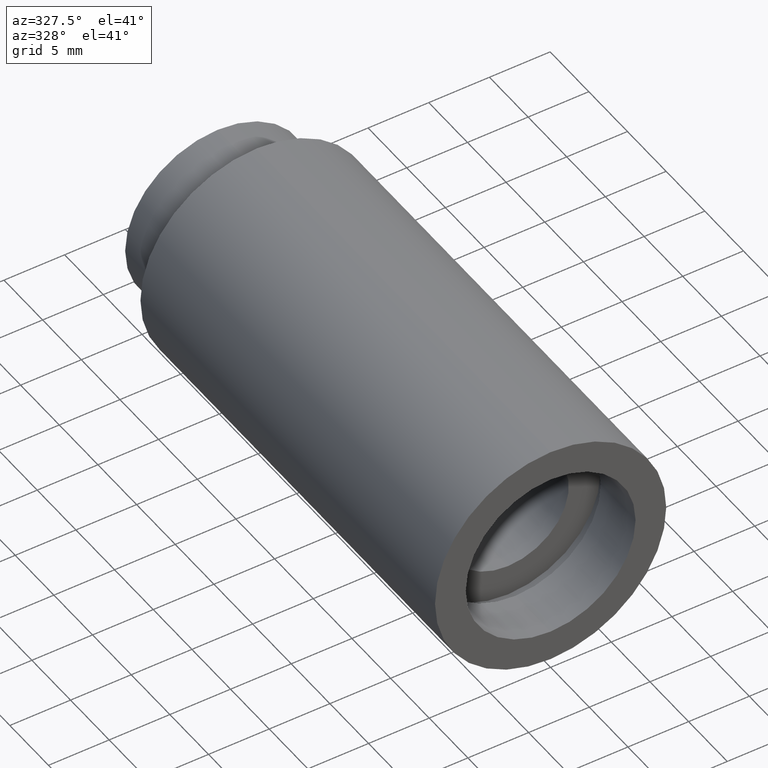
[diagram: clean part render]
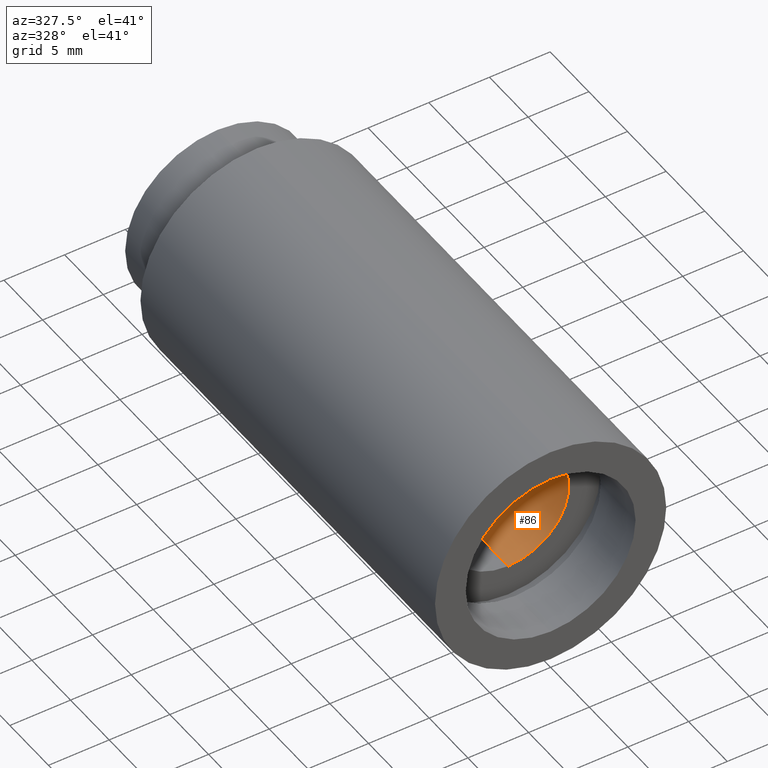
[diagram: same view with one face highlighted and labeled with its STEP entity id]
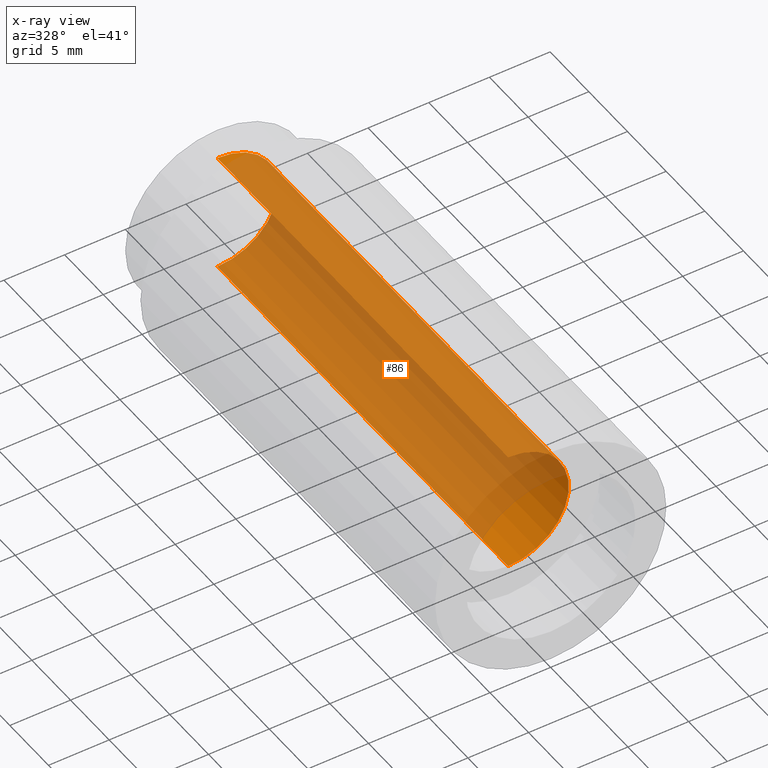
[diagram: x-ray of the same camera — body ghosted, the highlighted face saturated]
A machine part, auxiliary view. The second image highlights one B-rep face of the part: STEP entity #86.
The next image is the same camera in x-ray: the body ghosted, the highlighted face saturated — about 91% of this face is hidden behind the body in this view.
In plain terms, the highlighted cylindrical surface (partial cylindrical patch) has radius 5 mm, axis along (-0, 1, -0).
Its self-contained STEP definition (entity closure, byte-faithful):
#14 = CARTESIAN_POINT ( 'NONE',  ( 6.123233995736789000E-016, 43.09999999999998700, -5.000000000000019500 ) ) ;
#51 = EDGE_CURVE ( 'NONE', #70, #321, #66, .T. ) ;
#66 = LINE ( 'NONE', #111, #447 ) ;
#70 = VERTEX_POINT ( 'NONE', #158 ) ;
#79 = FACE_OUTER_BOUND ( 'NONE', #474, .T. ) ;
#86 = ADVANCED_FACE ( 'NONE', ( #79 ), #609, .F. ) ;
#92 = CARTESIAN_POINT ( 'NONE',  ( 0.0000000000000000000, 161.3761669434274500, 5.000000000000019500 ) ) ;
#100 = EDGE_CURVE ( 'NONE', #495, #321, #106, .T. ) ;
#106 = CIRCLE ( 'NONE', #437, 5.000000000000019500 ) ;
#111 = CARTESIAN_POINT ( 'NONE',  ( 6.123233995736789000E-016, 161.3761669434274500, -5.000000000000019500 ) ) ;
#112 = EDGE_CURVE ( 'NONE', #590, #70, #185, .T. ) ;
#119 = CARTESIAN_POINT ( 'NONE',  ( 0.0000000000000000000, 43.09999999999998700, 0.0000000000000000000 ) ) ;
#153 = DIRECTION ( 'NONE',  ( -0.0000000000000000000, 1.000000000000000000, -0.0000000000000000000 ) ) ;
#158 = CARTESIAN_POINT ( 'NONE',  ( 6.123233995736789000E-016, 5.499999999999976900, -5.000000000000019500 ) ) ;
#173 = DIRECTION ( 'NONE',  ( -0.0000000000000000000, 1.000000000000000000, -0.0000000000000000000 ) ) ;
#185 = CIRCLE ( 'NONE', #467, 5.000000000000019500 ) ;
#190 = LINE ( 'NONE', #92, #257 ) ;
#214 = EDGE_CURVE ( 'NONE', #590, #495, #190, .T. ) ;
#227 = CARTESIAN_POINT ( 'NONE',  ( 0.0000000000000000000, 5.499999999999976900, 0.0000000000000000000 ) ) ;
#245 = ORIENTED_EDGE ( 'NONE', *, *, #112, .F. ) ;
#251 = ORIENTED_EDGE ( 'NONE', *, *, #51, .F. ) ;
#257 = VECTOR ( 'NONE', #173, 1000.000000000000000 ) ;
#258 = ORIENTED_EDGE ( 'NONE', *, *, #214, .T. ) ;
#309 = DIRECTION ( 'NONE',  ( 0.0000000000000000000, 0.0000000000000000000, 1.000000000000000000 ) ) ;
#321 = VERTEX_POINT ( 'NONE', #14 ) ;
#357 = CARTESIAN_POINT ( 'NONE',  ( 0.0000000000000000000, 161.3761669434274500, 0.0000000000000000000 ) ) ;
#403 = DIRECTION ( 'NONE',  ( -0.0000000000000000000, 1.000000000000000000, -0.0000000000000000000 ) ) ;
#406 = DIRECTION ( 'NONE',  ( -0.0000000000000000000, 1.000000000000000000, -0.0000000000000000000 ) ) ;
#437 = AXIS2_PLACEMENT_3D ( 'NONE', #119, #406, #604 ) ;
#447 = VECTOR ( 'NONE', #153, 1000.000000000000000 ) ;
#457 = DIRECTION ( 'NONE',  ( -0.0000000000000000000, 1.000000000000000000, -0.0000000000000000000 ) ) ;
#467 = AXIS2_PLACEMENT_3D ( 'NONE', #227, #457, #309 ) ;
#474 = EDGE_LOOP ( 'NONE', ( #251, #245, #258, #519 ) ) ;
#495 = VERTEX_POINT ( 'NONE', #560 ) ;
#519 = ORIENTED_EDGE ( 'NONE', *, *, #100, .T. ) ;
#560 = CARTESIAN_POINT ( 'NONE',  ( 0.0000000000000000000, 43.09999999999998700, 5.000000000000019500 ) ) ;
#564 = AXIS2_PLACEMENT_3D ( 'NONE', #357, #403, #603 ) ;
#590 = VERTEX_POINT ( 'NONE', #615 ) ;
#603 = DIRECTION ( 'NONE',  ( 0.0000000000000000000, 0.0000000000000000000, 1.000000000000000000 ) ) ;
#604 = DIRECTION ( 'NONE',  ( 0.0000000000000000000, 0.0000000000000000000, 1.000000000000000000 ) ) ;
#609 = CYLINDRICAL_SURFACE ( 'NONE', #564, 5.000000000000019500 ) ;
#615 = CARTESIAN_POINT ( 'NONE',  ( 0.0000000000000000000, 5.499999999999976900, 5.000000000000019500 ) ) ;